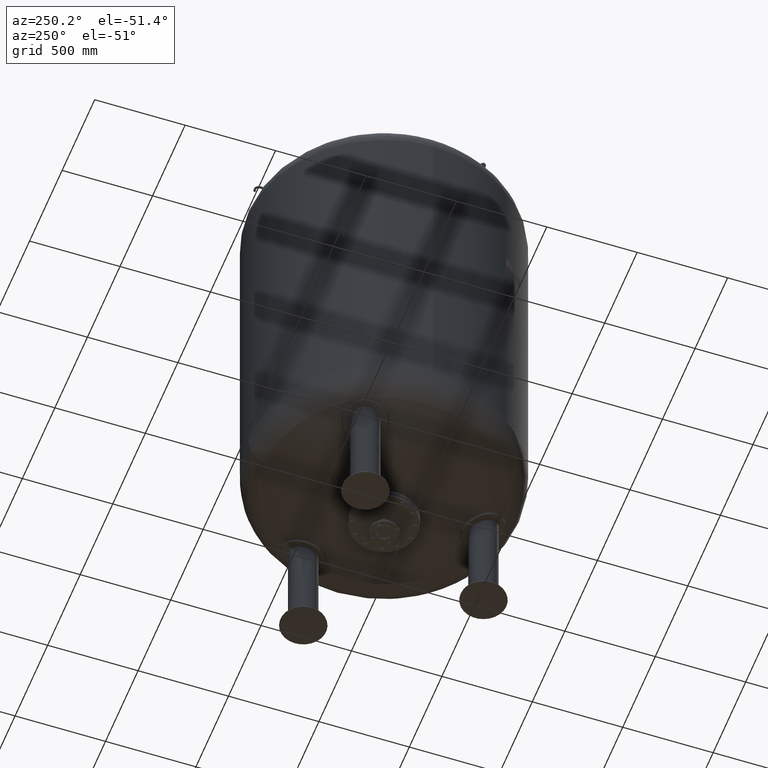
[diagram: clean part render]
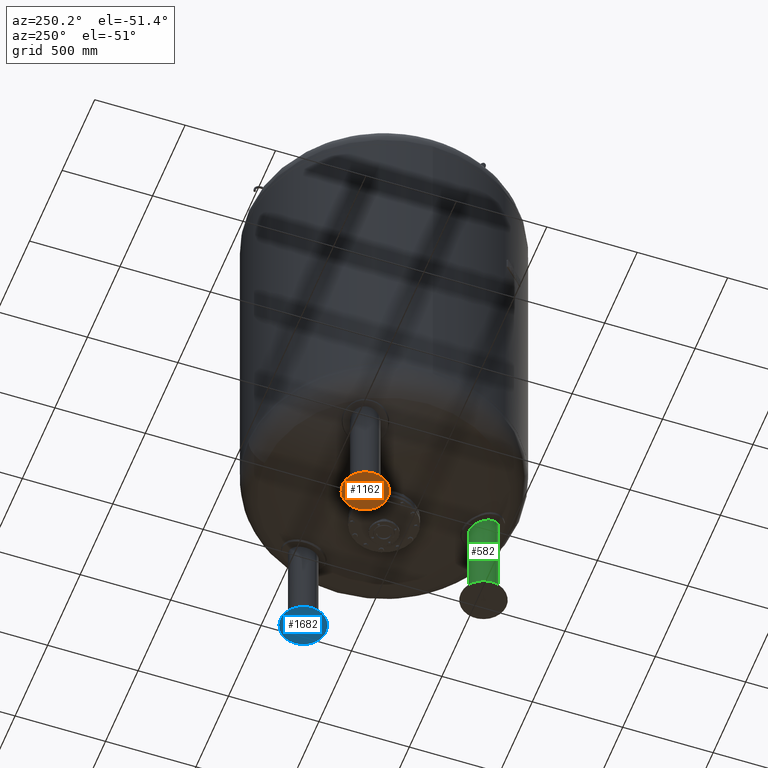
[diagram: same view with three faces highlighted in distinct colors, each labeled with its STEP entity id]
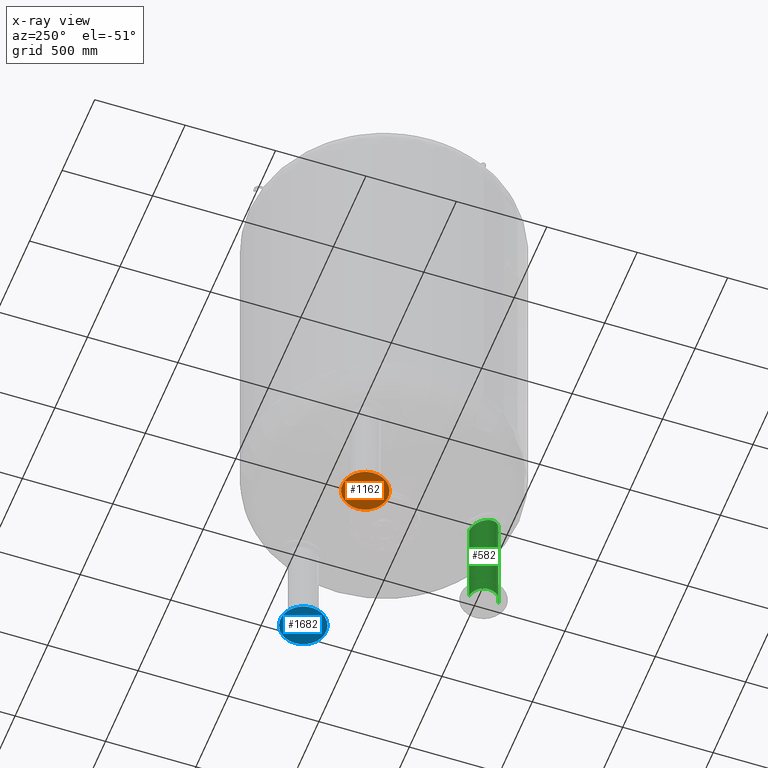
[diagram: x-ray of the same camera — body ghosted, the three highlighted faces saturated]
A machine part, auxiliary view with three faces highlighted in distinct colors.
The next image is the same camera in x-ray (body ghosted, the three faces saturated) — at least one of them is partly hidden behind the body in this view.
Their STEP definitions:

[orange] entity #1162 — the highlighted spherical surface has radius 570 mm.
#650=CARTESIAN_POINT('',(-585.702740850055990,338.155635094881520,14.171372612881115));
#651=VERTEX_POINT('',#650);
#660=CARTESIAN_POINT('',(-366.925203312826340,211.844364905118570,14.171372612881109));
#661=VERTEX_POINT('',#660);
#662=CARTESIAN_POINT('',(-476.313972081441140,275.000000000000060,14.171372612881115));
#663=DIRECTION('',(0.0,0.0,-1.0));
#664=DIRECTION('',(-0.866025403784439,0.500000000000000,0.0));
#665=AXIS2_PLACEMENT_3D('',#662,#663,#664);
#666=CIRCLE('',#665,126.311270189762990);
#667=EDGE_CURVE('',#661,#651,#666,.T.);
#1143=CARTESIAN_POINT('',(-476.313972081441140,275.000000000000060,14.171372612881115));
#1144=DIRECTION('',(0.0,0.0,-1.0));
#1145=DIRECTION('',(-0.866025403784439,0.500000000000000,0.0));
#1146=AXIS2_PLACEMENT_3D('',#1143,#1144,#1145);
#1147=CIRCLE('',#1146,126.311270189762990);
#1148=EDGE_CURVE('',#651,#661,#1147,.T.);
#1153=CARTESIAN_POINT('',(-476.313972081441080,275.000000000000170,570.0));
#1154=DIRECTION('',(0.500000000000000,0.866025403784439,-1.836970E-016));
#1155=DIRECTION('',(-0.866025403784439,0.500000000000000,0.0));
#1156=AXIS2_PLACEMENT_3D('',#1153,#1154,#1155);
#1157=SPHERICAL_SURFACE('',#1156,570.0);
#1158=ORIENTED_EDGE('',*,*,#1148,.T.);
#1159=ORIENTED_EDGE('',*,*,#667,.T.);
#1160=EDGE_LOOP('',(#1158,#1159));
#1161=FACE_OUTER_BOUND('',#1160,.T.);
#1162=ADVANCED_FACE('',(#1161),#1157,.T.);

[blue] entity #1682 — the highlighted spherical surface has radius 570 mm.
#1170=CARTESIAN_POINT('',(585.702740850056100,338.155635094881400,14.171372612881115));
#1171=VERTEX_POINT('',#1170);
#1180=CARTESIAN_POINT('',(366.925203312826450,211.844364905118480,14.171372612881109));
#1181=VERTEX_POINT('',#1180);
#1182=CARTESIAN_POINT('',(476.313972081441250,274.999999999999940,14.171372612881115));
#1183=DIRECTION('',(0.0,0.0,-1.0));
#1184=DIRECTION('',(0.866025403784439,0.500000000000000,0.0));
#1185=AXIS2_PLACEMENT_3D('',#1182,#1183,#1184);
#1186=CIRCLE('',#1185,126.311270189762990);
#1187=EDGE_CURVE('',#1181,#1171,#1186,.T.);
#1663=CARTESIAN_POINT('',(476.313972081441250,274.999999999999940,14.171372612881115));
#1664=DIRECTION('',(0.0,0.0,-1.0));
#1665=DIRECTION('',(0.866025403784439,0.500000000000000,0.0));
#1666=AXIS2_PLACEMENT_3D('',#1663,#1664,#1665);
#1667=CIRCLE('',#1666,126.311270189762990);
#1668=EDGE_CURVE('',#1171,#1181,#1667,.T.);
#1673=CARTESIAN_POINT('',(476.313972081441310,274.999999999999830,570.0));
#1674=DIRECTION('',(0.500000000000000,-0.866025403784439,-1.836970E-016));
#1675=DIRECTION('',(0.866025403784439,0.500000000000000,0.0));
#1676=AXIS2_PLACEMENT_3D('',#1673,#1674,#1675);
#1677=SPHERICAL_SURFACE('',#1676,570.0);
#1678=ORIENTED_EDGE('',*,*,#1668,.T.);
#1679=ORIENTED_EDGE('',*,*,#1187,.T.);
#1680=EDGE_LOOP('',(#1678,#1679));
#1681=FACE_OUTER_BOUND('',#1680,.T.);
#1682=ADVANCED_FACE('',(#1681),#1677,.T.);

[green] entity #582 — the highlighted cylindrical surface (edge-blend (fillet) strip) has radius 79.5 mm, axis along (0, -0, -1).
#172=CARTESIAN_POINT('',(-1.674052E-014,-629.500000000000000,11.631170282581067));
#173=VERTEX_POINT('',#172);
#174=CARTESIAN_POINT('',(-1.284913E-013,-629.500000000000680,619.974328976416250));
#175=VERTEX_POINT('',#174);
#176=CARTESIAN_POINT('',(-1.674052E-014,-629.500000000000000,11.631170282581067));
#177=DIRECTION('',(0.0,0.0,1.0));
#178=VECTOR('',#177,608.343158693835220);
#179=LINE('',#176,#178);
#180=EDGE_CURVE('',#173,#175,#179,.T.);
#182=CARTESIAN_POINT('',(2.220292E-014,-470.500000000000000,11.631170282581067));
#183=VERTEX_POINT('',#182);
#191=CARTESIAN_POINT('',(-7.182689E-014,-470.500000000000000,557.801446445446690));
#192=VERTEX_POINT('',#191);
#193=CARTESIAN_POINT('',(2.220292E-014,-470.500000000000000,11.631170282581067));
#194=DIRECTION('',(0.0,0.0,1.0));
#195=VECTOR('',#194,546.170276162865660);
#196=LINE('',#193,#195);
#197=EDGE_CURVE('',#183,#192,#196,.T.);
#279=CARTESIAN_POINT('',(-79.496546794574755,-549.259022444332120,588.259208461118310));
#280=VERTEX_POINT('',#279);
#281=CARTESIAN_POINT('',(-79.496546794574755,-549.259022444332120,588.259208461118310));
#282=CARTESIAN_POINT('',(-79.413984862175425,-540.401279760728700,584.797146556692160));
#283=CARTESIAN_POINT('',(-77.851266591540124,-531.575460725973930,581.360502151041940));
#284=CARTESIAN_POINT('',(-71.208252571481324,-513.058214382275310,574.174236989335670));
#285=CARTESIAN_POINT('',(-65.536339505062784,-503.676852198831510,570.549958778381670));
#286=CARTESIAN_POINT('',(-51.074552176673599,-488.232684979459290,564.600364334074580));
#287=CARTESIAN_POINT('',(-42.669749602980012,-482.115720236831750,562.252334812652180));
#288=CARTESIAN_POINT('',(-24.231733499397382,-473.643130615666110,559.003880738072780));
#289=CARTESIAN_POINT('',(-14.525158374878799,-471.203296638851610,558.070588206412370));
#290=CARTESIAN_POINT('',(-3.038514087384449,-470.543488982217640,557.818088260262240));
#291=CARTESIAN_POINT('',(-1.518216679410991,-470.500000000000000,557.801446445446690));
#292=CARTESIAN_POINT('',(-7.182689E-014,-470.500000000000000,557.801446445446690));
#293=B_SPLINE_CURVE_WITH_KNOTS('',3,(#281,#282,#283,#284,#285,#286,#287,#288,#289,#290,#291,#292),.UNSPECIFIED.,.F.,.U.,(4,2,2,2,2,4),(13.058196146459986,15.908544671985489,19.326182717890447,22.493256912797680,25.489178793934588,25.946274642103887),.UNSPECIFIED.);
#294=EDGE_CURVE('',#280,#192,#293,.T.);
#545=CARTESIAN_POINT('',(-1.232084E-013,-629.500000000000000,619.974328976416360));
#546=CARTESIAN_POINT('',(-9.592202166925056,-629.499999999999770,619.974328976416020));
#547=CARTESIAN_POINT('',(-19.057045087347216,-627.764875279292370,619.280247607236110));
#548=CARTESIAN_POINT('',(-37.029118879032922,-621.014758583427350,616.585819491894090));
#549=CARTESIAN_POINT('',(-45.297994220543927,-616.016537504471100,614.592514188904490));
#550=CARTESIAN_POINT('',(-60.037998727795404,-603.087412912687230,609.453155597640030));
#551=CARTESIAN_POINT('',(-66.211195741385069,-595.101102273712850,606.286372499794770));
#552=CARTESIAN_POINT('',(-75.609934501561952,-576.790586001446740,599.055880090259170));
#553=CARTESIAN_POINT('',(-78.493118529778243,-566.452340789569350,594.989155554557560));
#554=CARTESIAN_POINT('',(-79.444984341154537,-553.699965758499730,589.995750597807050));
#555=CARTESIAN_POINT('',(-79.517234166208439,-551.478488600296260,589.126690109795050));
#556=CARTESIAN_POINT('',(-79.496546794574755,-549.259022444332120,588.259208461118310));
#557=B_SPLINE_CURVE_WITH_KNOTS('',3,(#545,#546,#547,#548,#549,#550,#551,#552,#553,#554,#555,#556),.UNSPECIFIED.,.F.,.U.,(4,2,2,2,2,4),(0.0,2.877660650077480,5.813761654146234,8.951189755024860,12.343990246483170,13.058196146459986),.UNSPECIFIED.);
#558=EDGE_CURVE('',#175,#280,#557,.T.);
#564=CARTESIAN_POINT('',(-2.905276E-015,-550.0,15.815585141290533));
#565=DIRECTION('',(1.836970E-016,-3.374460E-032,-1.0));
#566=DIRECTION('',(0.0,-1.0,0.0));
#567=AXIS2_PLACEMENT_3D('',#564,#565,#566);
#568=CYLINDRICAL_SURFACE('',#567,79.500000000000000);
#569=ORIENTED_EDGE('',*,*,#180,.T.);
#570=ORIENTED_EDGE('',*,*,#558,.T.);
#571=ORIENTED_EDGE('',*,*,#294,.T.);
#572=ORIENTED_EDGE('',*,*,#197,.F.);
#573=CARTESIAN_POINT('',(-2.136611E-015,-550.0,11.631170282581067));
#574=DIRECTION('',(0.0,0.0,-1.0));
#575=DIRECTION('',(0.0,-1.0,0.0));
#576=AXIS2_PLACEMENT_3D('',#573,#574,#575);
#577=CIRCLE('',#576,79.500000000000000);
#578=EDGE_CURVE('',#173,#183,#577,.T.);
#579=ORIENTED_EDGE('',*,*,#578,.F.);
#580=EDGE_LOOP('',(#569,#570,#571,#572,#579));
#581=FACE_OUTER_BOUND('',#580,.T.);
#582=ADVANCED_FACE('',(#581),#568,.T.);